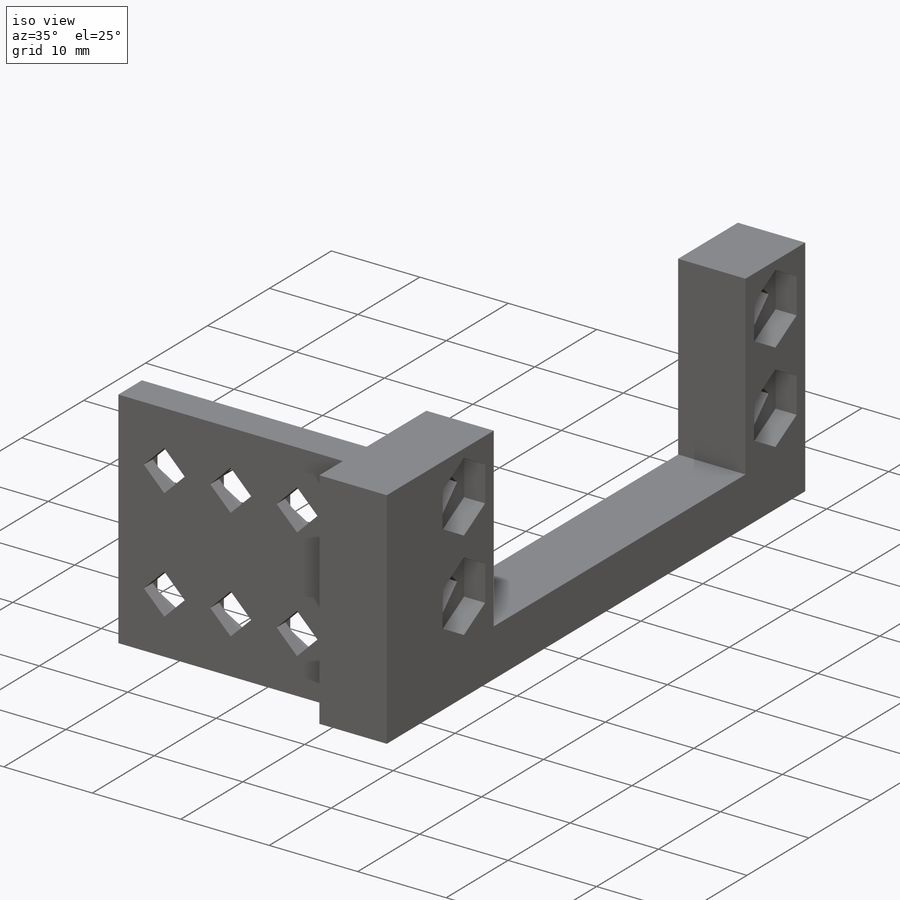
[diagram: iso view]
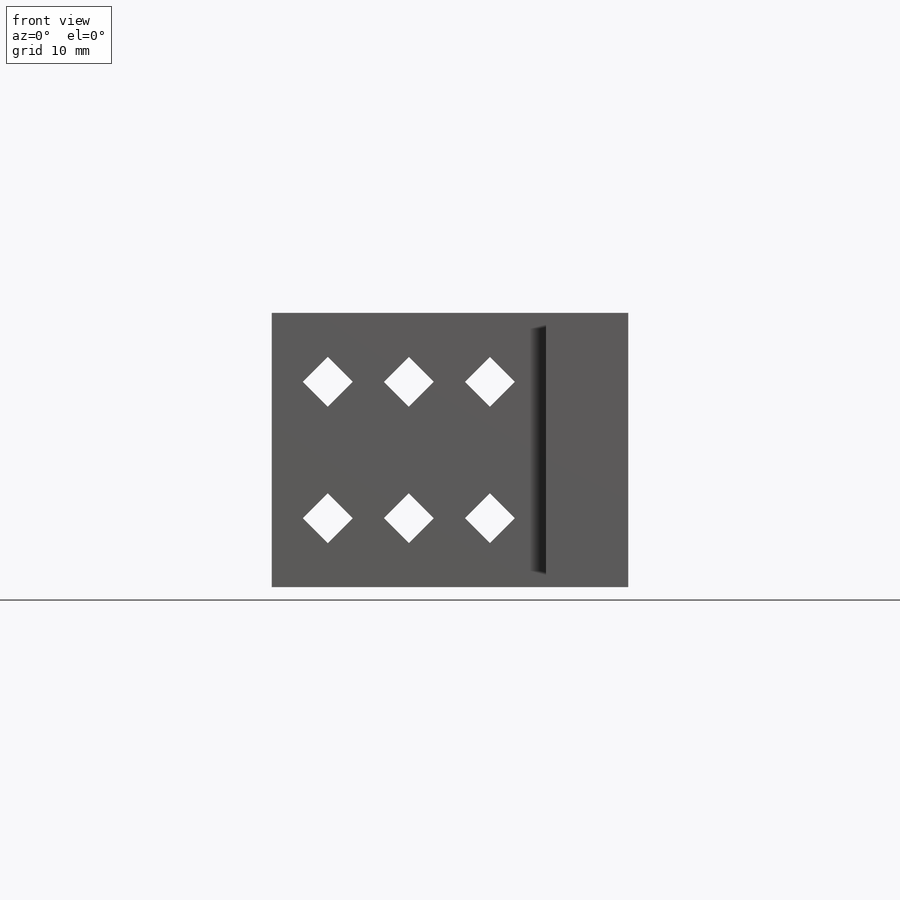
[diagram: front view]
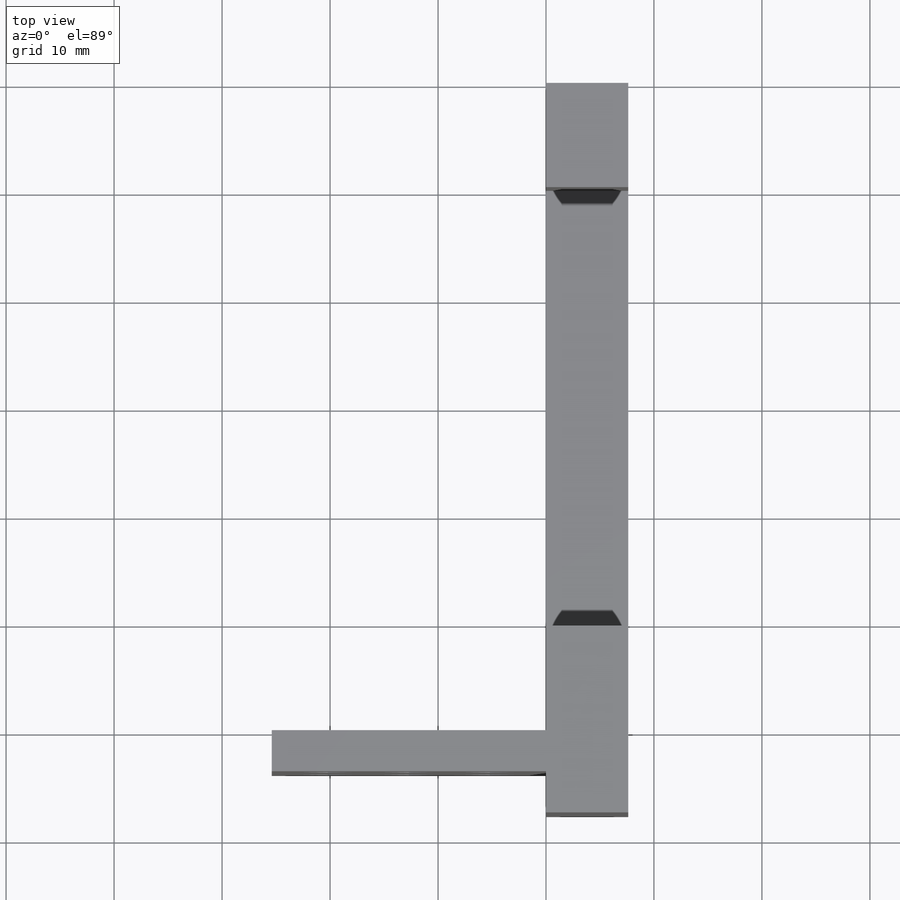
[diagram: top view]
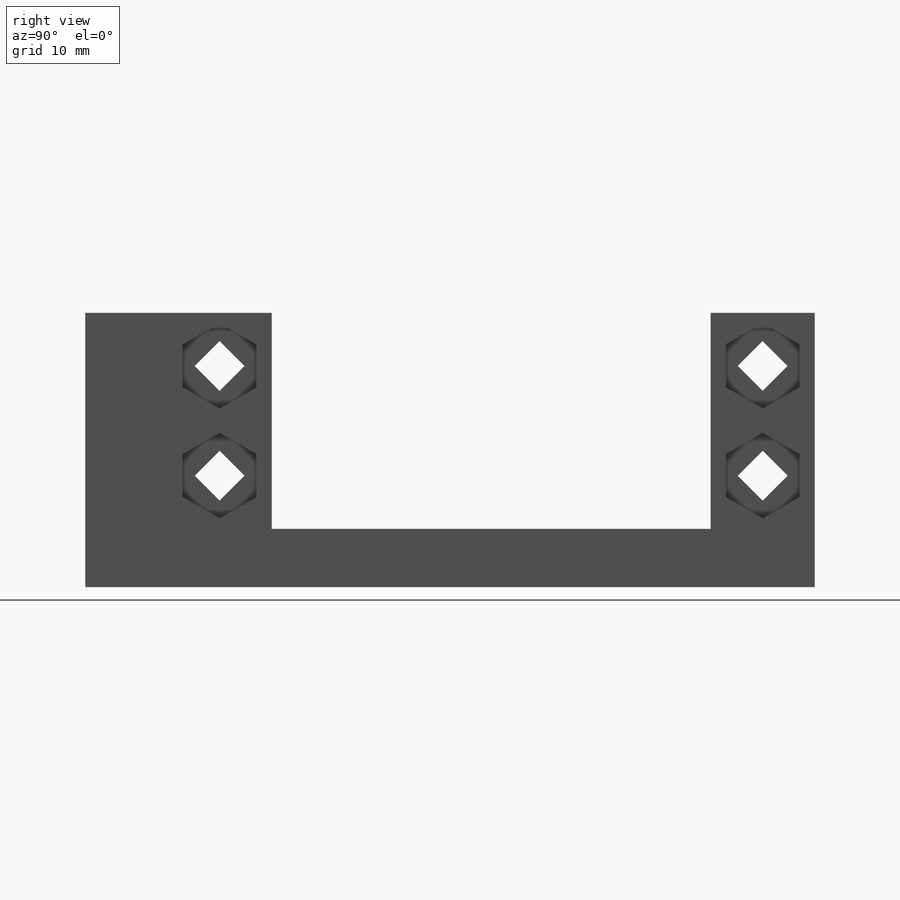
[diagram: right view]
SOLIDWORKS PART (.sldprt)
format: sldprt  version: not decoded by parser v0  size: 488,448 bytes
history: native  units: mm
features: sketch x9, cut_extrude x7, material x1, extrude x1, mirror x1 (+12 scaffold rows collapsed)
feature tree (31):
  scaffold x12  (default folders/planes/origin — collapsed)
  material  "ABS"
  sketch  "Sketch1"  dims[c1.D1=25.4mm c1.D2=50.8mm c1.D3=7.62mm c1.D4=7.62mm c1.D5=9.652mm c1.D6=9.652mm c2.D2=40.64mm]
  extrude  "Boss-Extrude1"  Depth=25.4mm
  sketch  "Sketch2"  dims[D1=40.64mm]
  cut_extrude  "Cut-Extrude1"  Depth=20mm
  sketch  "Sketch3"  dims[D1=3.2639mm D2=5.08mm]
  cut_extrude  "Cut-Extrude2"  [1 undecoded]
  sketch  "Sketch12"  dims[D1=6.858mm]
  cut_extrude  "Cut-Extrude6"  Depth=2.38125mm
  sketch  "Sketch4"
  sketch  "Sketch9"  dims[c1.D1=3.2639mm c1.D2=3.2639mm c2.D1=31.75mm c2.D2=~8.688895mm]
  cut_extrude  "Cut-Extrude5"  [1 undecoded]
  sketch  "Sketch13"  dims[D1=6.858mm]
  cut_extrude  "Cut-Extrude7"  Depth=2.38125mm
  mirror  "Mirror2"
  sketch  "Sketch14"
  cut_extrude  "Cut-Extrude8"  [1 undecoded]
  sketch  "Sketch15"  dims[D1=2.794mm]
  cut_extrude  "Cut-Extrude9"  [1 undecoded]
decode coverage: 11 of 18 modeling features carry decoded parameters
note: ~ marks probable driven/reference dimensions
note: 4 parameter values undecoded
summary: no parameter record found for 4 features
note: suppression state not decoded; provenance and decode notes live in map.json
